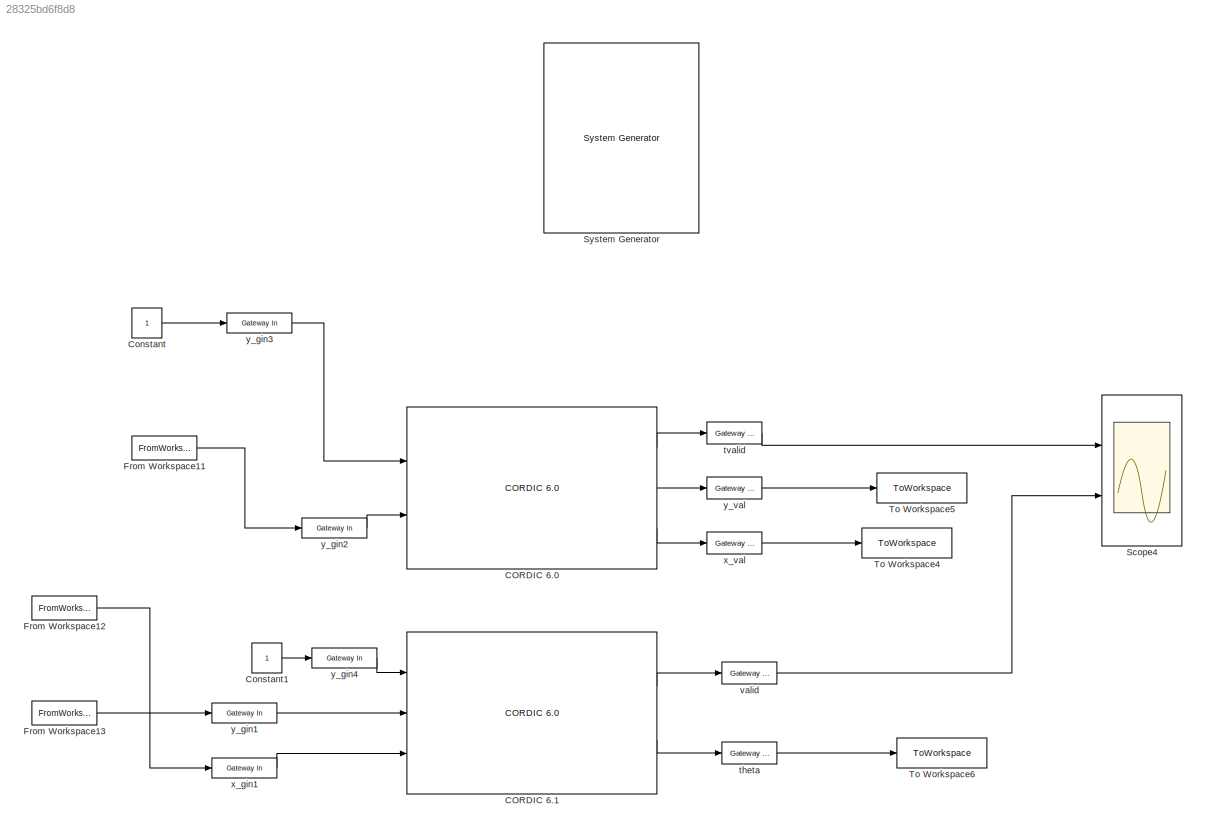
MODEL slx_28325bd6f8d8
KIND model
CONFIG AbsTol = auto
CONFIG EnableMultiTasking = off
CONFIG FixedStep = auto
CONFIG MaxStep = auto
CONFIG MinStep = auto
CONFIG RelTol = 1e-3
CONFIG SampleTimeConstraint = Unconstrained
CONFIG SolverName = VariableStepAuto
CONFIG StartTime = 0.0
CONFIG StopTime = 10.0
BLOCK [Reference]  System Generator  REF=xbsIndex_r4/ System Generator
  AttributesFormatString = System\nGenerator
  Ports = []
  SourceBlock = xbsIndex_r4/ System Generator
  SourceType = Xilinx System Generator Block
  Tag = genX
  UserDataPersistent = on
BLOCK [Reference] CORDIC 6.0  REF=hdlDSPIP/CORDIC 6.0 
  Ports = [2, 3]
  SourceBlock = hdlDSPIP/CORDIC 6.0
  SourceType = CORDIC 6.0 Block
BLOCK [Reference] CORDIC 6.1  REF=hdlDSPIP/CORDIC 6.0 
  Ports = [3, 2]
  SourceBlock = hdlDSPIP/CORDIC 6.0
  SourceType = CORDIC 6.0 Block
BLOCK [Constant] Constant
BLOCK [Constant] Constant1
BLOCK [FromWorkspace] From Workspace11
  VariableName = tan_var
BLOCK [FromWorkspace] From Workspace12
  VariableName = x_var
BLOCK [FromWorkspace] From Workspace13
  VariableName = y_var
BLOCK [Scope] Scope4
  Floating = off
  NumInputPorts = 2
  Ports = [2]
  ScopeSpecificationString = Simulink.scopes.TimeScopeBlockCfg('CurrentConfiguration', extmgr.ConfigurationSet(extmgr.Configuration('Core','General UI',true),extmgr.Configuration('Core','Source UI',true),extmgr.Configuration('Sources','WiredSimulink',true,'DataLoggingVariableName','ScopeData2'),extmgr.Configuration('Visuals','Time Domain',true,'SerializedDisplays',{struct('MinYLimReal','-1.00000','MaxYLimReal','1.00000','YLab...<+2782ch>
BLOCK [ToWorkspace] To Workspace4
  FixptAsFi = on
  MaxDataPoints = inf
  Ports = [1]
  SampleTime = -1
  SaveFormat = Timeseries
  VariableName = c_4var
BLOCK [ToWorkspace] To Workspace5
  FixptAsFi = on
  MaxDataPoints = inf
  Ports = [1]
  SampleTime = -1
  SaveFormat = Timeseries
  VariableName = c_5var
BLOCK [ToWorkspace] To Workspace6
  FixptAsFi = on
  MaxDataPoints = inf
  Ports = [1]
  SampleTime = -1
  SaveFormat = Timeseries
  VariableName = c_6var
BLOCK [Reference] theta  REF=hdlBasic/Gateway Out
  Ports = [1, 1]
  SourceBlock = hdlBasic/Gateway Out
  SourceType = Gateway Out Block
BLOCK [Reference] tvalid  REF=hdlBasic/Gateway Out
  Ports = [1, 1]
  SourceBlock = hdlBasic/Gateway Out
  SourceType = Gateway Out Block
BLOCK [Reference] valid  REF=hdlBasic/Gateway Out
  Ports = [1, 1]
  SourceBlock = hdlBasic/Gateway Out
  SourceType = Gateway Out Block
BLOCK [Reference] x_gin1  REF=hdlBasic/Gateway In
  Ports = [1, 1]
  SourceBlock = hdlBasic/Gateway In
  SourceType = Gateway In Block
BLOCK [Reference] x_val  REF=hdlBasic/Gateway Out
  Ports = [1, 1]
  SourceBlock = hdlBasic/Gateway Out
  SourceType = Gateway Out Block
BLOCK [Reference] y_gin1  REF=hdlBasic/Gateway In
  Ports = [1, 1]
  SourceBlock = hdlBasic/Gateway In
  SourceType = Gateway In Block
BLOCK [Reference] y_gin2  REF=hdlBasic/Gateway In
  Ports = [1, 1]
  SourceBlock = hdlBasic/Gateway In
  SourceType = Gateway In Block
BLOCK [Reference] y_gin3  REF=hdlBasic/Gateway In
  Ports = [1, 1]
  SourceBlock = hdlBasic/Gateway In
  SourceType = Gateway In Block
BLOCK [Reference] y_gin4  REF=hdlBasic/Gateway In
  Ports = [1, 1]
  SourceBlock = hdlBasic/Gateway In
  SourceType = Gateway In Block
BLOCK [Reference] y_val  REF=hdlBasic/Gateway Out
  Ports = [1, 1]
  SourceBlock = hdlBasic/Gateway Out
  SourceType = Gateway Out Block
LINE CORDIC 6.0:1 -> tvalid:1
LINE CORDIC 6.0:2 -> y_val:1
LINE CORDIC 6.0:3 -> x_val:1
LINE CORDIC 6.1:1 -> valid:1
LINE CORDIC 6.1:2 -> theta:1
LINE Constant1:1 -> y_gin4:1
LINE Constant:1 -> y_gin3:1
LINE From Workspace11:1 -> y_gin2:1
LINE From Workspace12:1 -> x_gin1:1
LINE From Workspace13:1 -> y_gin1:1
LINE theta:1 -> To Workspace6:1
LINE tvalid:1 -> Scope4:1
LINE valid:1 -> Scope4:2
LINE x_gin1:1 -> CORDIC 6.1:3
LINE x_val:1 -> To Workspace4:1
LINE y_gin1:1 -> CORDIC 6.1:2
LINE y_gin2:1 -> CORDIC 6.0:2
LINE y_gin3:1 -> CORDIC 6.0:1
LINE y_gin4:1 -> CORDIC 6.1:1
LINE y_val:1 -> To Workspace5:1
